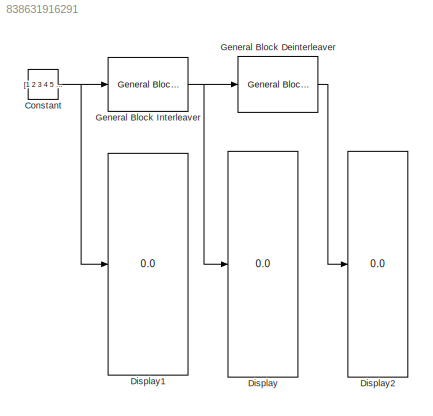
MODEL slx_838631916291
KIND model
CONFIG AbsTol = auto
CONFIG EnableMultiTasking = off
CONFIG FixedStep = auto
CONFIG MaxStep = auto
CONFIG MinStep = auto
CONFIG RelTol = 1e-3
CONFIG SampleTimeConstraint = Unconstrained
CONFIG SolverName = VariableStepAuto
CONFIG StartTime = 0.0
CONFIG StopTime = 10
BLOCK [Constant] Constant
  SampleTime = 1
  Value = [1 2 3 4 5 6 7 8 9 10 11 12].'
BLOCK [Display] Display
  Decimation = 1
BLOCK [Display] Display1
  Decimation = 1
BLOCK [Display] Display2
  Decimation = 1
BLOCK [Reference] General Block Deinterleaver  REF=commblkintrlv2/General Block
Deinterleaver
  SourceBlock = commblkintrlv2/General Block\nDeinterleaver
  SourceType = General Block Deinterleaver
  StatePerturbationForJacobian = 1.0e-05
BLOCK [Reference] General Block Interleaver  REF=commblkintrlv2/General Block
Interleaver
  SourceBlock = commblkintrlv2/General Block\nInterleaver
  SourceType = General Block Interleaver
  StatePerturbationForJacobian = 1.0e-05
NET Constant:1 -> Display1:1, General Block Interleaver:1
LINE General Block Deinterleaver:1 -> Display2:1
NET General Block Interleaver:1 -> Display:1, General Block Deinterleaver:1
note: NET lines group one-source signal fan-out (src -> all destinations, sorted); 1:1 wires keep LINE
